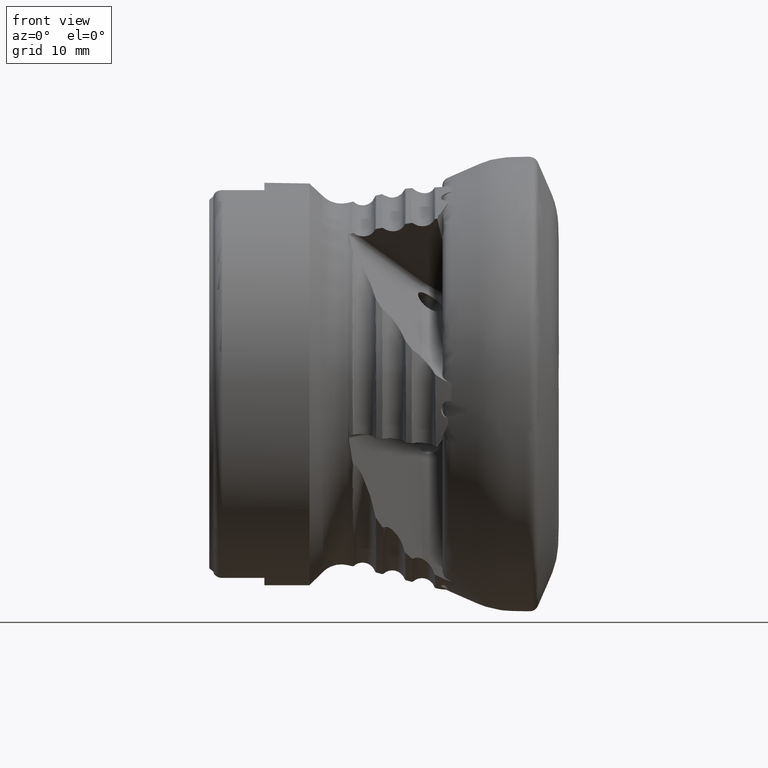
[diagram: clean part render]
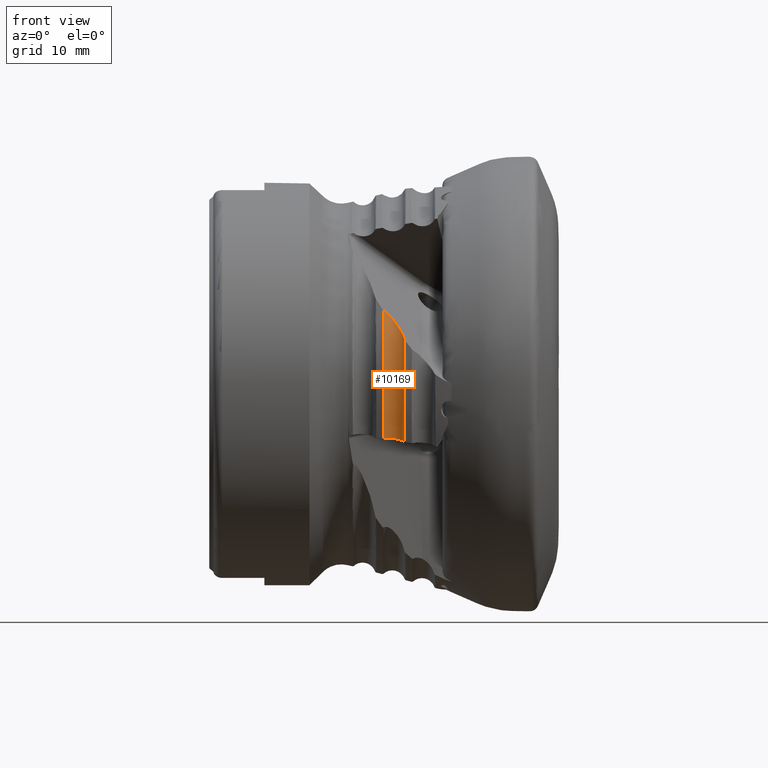
[diagram: same view with one face highlighted and labeled with its STEP entity id]
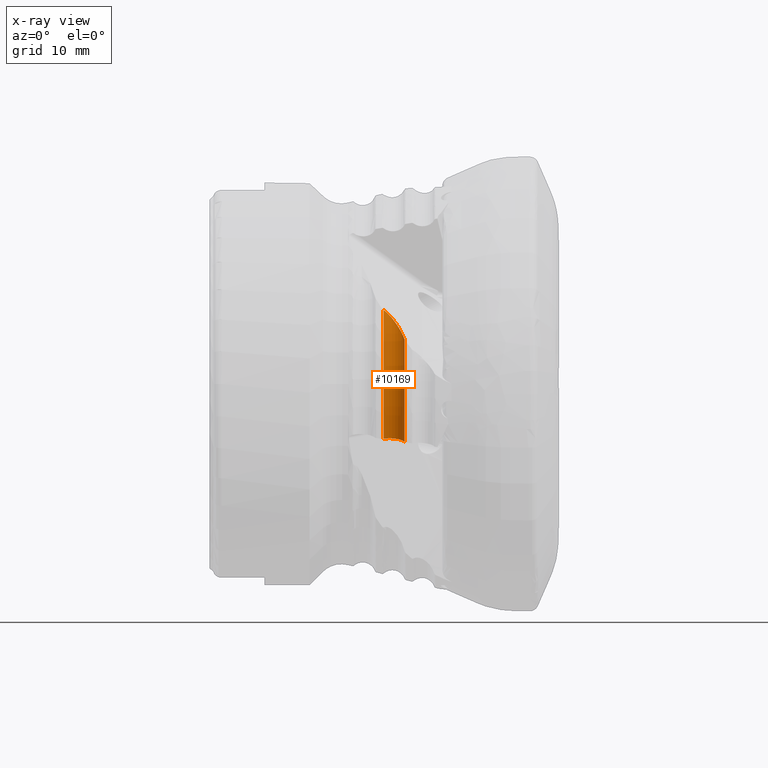
[diagram: x-ray of the same camera — body ghosted, the highlighted face saturated]
A machine part, front view. The second image highlights one B-rep face of the part: STEP entity #10169.
The next image is the same camera in x-ray: the body ghosted, the highlighted face saturated — about 0% of this face is hidden behind the body in this view.
In plain terms, the highlighted toroidal blend (fillet) surface has major radius 22.8041 mm and minor (blend) radius 1.5 mm.
Its self-contained STEP definition (entity closure, byte-faithful):
#297 = CARTESIAN_POINT ( 'NONE',  ( -17.26101675611968700, -20.48389022465056500, 6.465337281423416000 ) ) ;
#910 = CARTESIAN_POINT ( 'NONE',  ( -17.99193688195387300, 0.0000000000000000000, 0.0000000000000000000 ) ) ;
#940 = CARTESIAN_POINT ( 'NONE',  ( -17.49624793383152600, -20.43939604337764100, -6.282289917705802500 ) ) ;
#1339 = CARTESIAN_POINT ( 'NONE',  ( -17.66034721543432800, -20.13822592904242700, 7.052837391802766500 ) ) ;
#1955 = CARTESIAN_POINT ( 'NONE',  ( -17.16818908819226800, -20.58632398045009300, -6.354150356636907300 ) ) ;
#1989 = AXIS2_PLACEMENT_3D ( 'NONE', #10306, #3897, #11348 ) ;
#2069 = AXIS2_PLACEMENT_3D ( 'NONE', #10669, #4247, #11719 ) ;
#2188 = ORIENTED_EDGE ( 'NONE', *, *, #3277, .T. ) ;
#2243 = CARTESIAN_POINT ( 'NONE',  ( -16.57686742858383200, -21.71941269302773500, 5.084143764470429300 ) ) ;
#2385 = CARTESIAN_POINT ( 'NONE',  ( -18.00082372135618800, -19.93504876970460800, 7.500436852982934600 ) ) ;
#2600 = VERTEX_POINT ( 'NONE', #9535 ) ;
#2989 = CARTESIAN_POINT ( 'NONE',  ( -18.98437496355138900, -20.75156546168016900, -6.274304773347382500 ) ) ;
#3006 = DIRECTION ( 'NONE',  ( 1.000000000000000000, -0.0000000000000000000, -0.0000000000000000000 ) ) ;
#3043 = CARTESIAN_POINT ( 'NONE',  ( -16.79786497003316000, -20.88257747659311300, -6.477637181980726100 ) ) ;
#3178 = VERTEX_POINT ( 'NONE', #12570 ) ;
#3277 = EDGE_CURVE ( 'NONE', #3178, #2600, #10060, .T. ) ;
#3304 = ORIENTED_EDGE ( 'NONE', *, *, #4264, .T. ) ;
#3468 = CARTESIAN_POINT ( 'NONE',  ( -18.38737185033843600, -19.81666735469792000, 7.943206910104755100 ) ) ;
#3897 = DIRECTION ( 'NONE',  ( -1.000000000000000000, 0.0000000000000000000, 0.0000000000000000000 ) ) ;
#4049 = ORIENTED_EDGE ( 'NONE', *, *, #8048, .T. ) ;
#4076 = CARTESIAN_POINT ( 'NONE',  ( -18.79121564188606500, -20.60457629218640800, -6.240747213670770700 ) ) ;
#4113 = CARTESIAN_POINT ( 'NONE',  ( -16.57686742858335500, -21.29874085328616900, -6.629105792822827900 ) ) ;
#4247 = DIRECTION ( 'NONE',  ( 1.000000000000000000, -0.0000000000000000000, -0.0000000000000000000 ) ) ;
#4264 = EDGE_CURVE ( 'NONE', #6016, #4896, #12770, .T. ) ;
#4531 = CARTESIAN_POINT ( 'NONE',  ( -18.83458006141481900, -19.86440887629973400, 8.347891298496037400 ) ) ;
#4896 = VERTEX_POINT ( 'NONE', #7372 ) ;
#4967 = B_SPLINE_CURVE_WITH_KNOTS ( 'NONE', 3,
 ( #2243, #9758, #12970, #6589, #297, #7704, #1339, #8813, #2385, #9898, #3468, #10946, #4531, #11988 ),
 .UNSPECIFIED., .F., .F.,
 ( 4, 2, 2, 2, 2, 2, 4 ),
 ( 9.638812155110500600E-007, 0.001186420443628446600, 0.002371877006041382300, 0.002964605287247850000, 0.003557333568454318100, 0.004150061849660785300, 0.004742790130867253000 ),
 .UNSPECIFIED. ) ;
#5105 = CARTESIAN_POINT ( 'NONE',  ( -18.45803327850837800, -20.44964491661502800, -6.214904325129939600 ) ) ;
#5122 = DIRECTION ( 'NONE',  ( 0.0000000000000000000, 0.0000000000000000000, -1.000000000000000000 ) ) ;
#5452 = EDGE_LOOP ( 'NONE', ( #3304, #9849, #2188, #4049 ) ) ;
#6016 = VERTEX_POINT ( 'NONE', #8589 ) ;
#6179 = CARTESIAN_POINT ( 'NONE',  ( -18.09850826208654000, -20.37547460378068500, -6.217239150695349700 ) ) ;
#6589 = CARTESIAN_POINT ( 'NONE',  ( -17.08450343583901400, -20.69244992267281400, 6.173169563748067500 ) ) ;
#7141 = EDGE_CURVE ( 'NONE', #4896, #3178, #4967, .T. ) ;
#7267 = CARTESIAN_POINT ( 'NONE',  ( -17.73355322210862200, -20.38564677127588700, -6.247377754009558100 ) ) ;
#7372 = CARTESIAN_POINT ( 'NONE',  ( -16.57686742858383200, -21.71941269302773500, 5.084143764470429300 ) ) ;
#7704 = CARTESIAN_POINT ( 'NONE',  ( -17.55634208699613600, -20.21888559186809100, 6.905279690255825100 ) ) ;
#8048 = EDGE_CURVE ( 'NONE', #2600, #6016, #11248, .T. ) ;
#8379 = CARTESIAN_POINT ( 'NONE',  ( -17.38184703372065000, -20.48014775812107800, -6.303942324561790900 ) ) ;
#8589 = CARTESIAN_POINT ( 'NONE',  ( -16.57686742858335500, -21.29874085328616900, -6.629105792822827900 ) ) ;
#8626 = TOROIDAL_SURFACE ( 'NONE', #9925, 22.80410534940720500, 1.500000000000000900 ) ;
#8813 = CARTESIAN_POINT ( 'NONE',  ( -17.88249407858867500, -19.99640950369918700, 7.350265715543576700 ) ) ;
#9470 = CARTESIAN_POINT ( 'NONE',  ( -17.06687222965874900, -20.65310560953281500, -6.383298385946431200 ) ) ;
#9535 = CARTESIAN_POINT ( 'NONE',  ( -18.98437496355138900, -20.75156546168016900, -6.274304773347382500 ) ) ;
#9758 = CARTESIAN_POINT ( 'NONE',  ( -16.65889680304037100, -21.42049917470972900, 5.337559001046633600 ) ) ;
#9849 = ORIENTED_EDGE ( 'NONE', *, *, #7141, .T. ) ;
#9898 = CARTESIAN_POINT ( 'NONE',  ( -18.25290991424862600, -19.84568702443174000, 7.796269734948463500 ) ) ;
#9925 = AXIS2_PLACEMENT_3D ( 'NONE', #910, #3006, #5122 ) ;
#10060 = CIRCLE ( 'NONE', #2069, 21.67935353047329300 ) ;
#10169 = ADVANCED_FACE ( 'NONE', ( #11769 ), #8626, .F. ) ;
#10306 = CARTESIAN_POINT ( 'NONE',  ( -16.57686742858325600, 0.0000000000000000000, 0.0000000000000000000 ) ) ;
#10529 = CARTESIAN_POINT ( 'NONE',  ( -16.65879395285663700, -21.07883536928677900, -6.551630489194041100 ) ) ;
#10669 = CARTESIAN_POINT ( 'NONE',  ( -18.98437496355143800, 0.0000000000000000000, 0.0000000000000000000 ) ) ;
#10946 = CARTESIAN_POINT ( 'NONE',  ( -18.67492986759038600, -19.82487862786482000, 8.216518048610263100 ) ) ;
#11248 = B_SPLINE_CURVE_WITH_KNOTS ( 'NONE', 3,
 ( #2989, #11497, #4076, #11547, #5105, #12562, #6179, #13619, #7267, #940, #8379, #1955, #9470, #3043, #10529, #4113 ),
 .UNSPECIFIED., .F., .F.,
 ( 4, 2, 2, 2, 2, 2, 2, 4 ),
 ( 2.631532426329572100E-007, 0.0003657034762038047900, 0.0007311437991649765600, 0.001096584122126148400, 0.001462024445087320200, 0.001827464768048492000, 0.002192905091009664000, 0.002923785736931999700 ),
 .UNSPECIFIED. ) ;
#11348 = DIRECTION ( 'NONE',  ( 0.0000000000000000000, 0.0000000000000000000, 1.000000000000000000 ) ) ;
#11497 = CARTESIAN_POINT ( 'NONE',  ( -18.89178927181045600, -20.67197924832108700, -6.255253045210903200 ) ) ;
#11547 = CARTESIAN_POINT ( 'NONE',  ( -18.57466319345567700, -20.49326647750448400, -6.220502568152594100 ) ) ;
#11719 = DIRECTION ( 'NONE',  ( 0.0000000000000000000, 0.0000000000000000000, -1.000000000000000000 ) ) ;
#11769 = FACE_OUTER_BOUND ( 'NONE', #5452, .T. ) ;
#11988 = CARTESIAN_POINT ( 'NONE',  ( -18.98437496355141000, -19.97356267945618300, 8.429185215018280900 ) ) ;
#12562 = CARTESIAN_POINT ( 'NONE',  ( -18.22147809661714700, -20.39118968804979200, -6.213303884680517100 ) ) ;
#12570 = CARTESIAN_POINT ( 'NONE',  ( -18.98437496355141000, -19.97356267945618300, 8.429185215018280900 ) ) ;
#12770 = CIRCLE ( 'NONE', #1989, 22.30653279978483600 ) ;
#12970 = CARTESIAN_POINT ( 'NONE',  ( -16.78384354735659700, -21.16191457323953200, 5.608991662565496300 ) ) ;
#13619 = CARTESIAN_POINT ( 'NONE',  ( -17.85401114173198100, -20.37290832281532000, -6.234382064334838000 ) ) ;